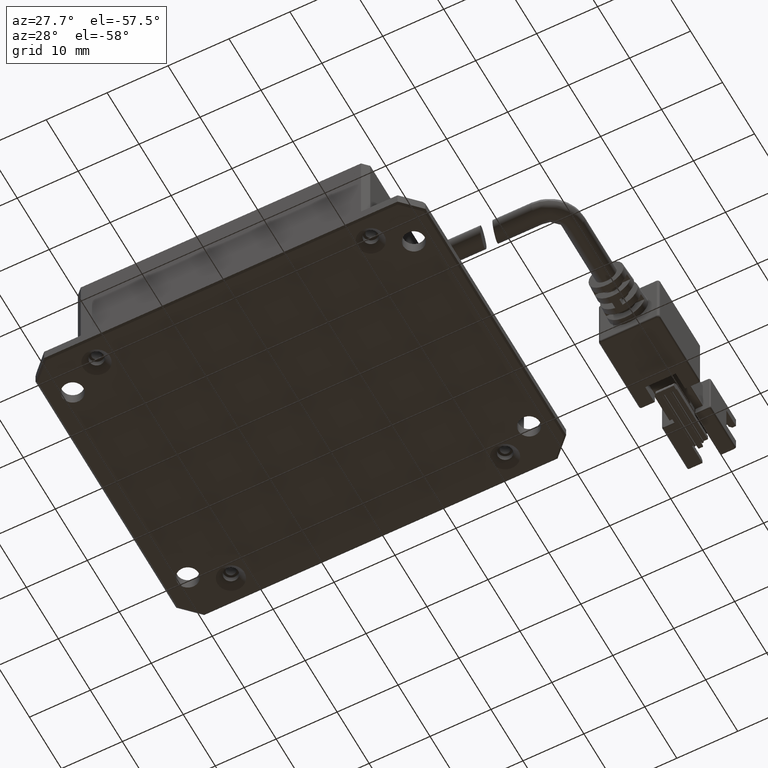
[diagram: clean part render]
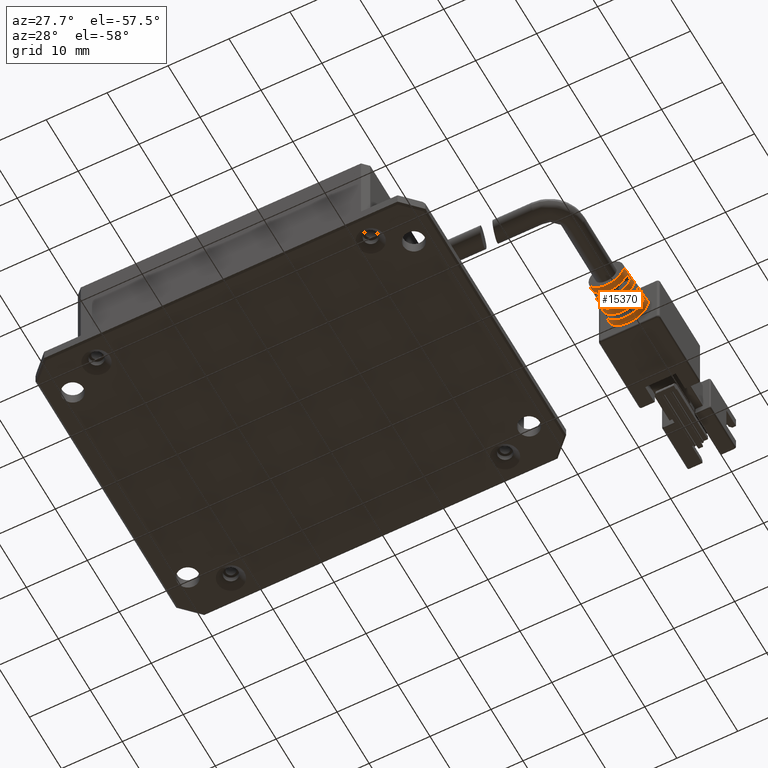
[diagram: same view with one face highlighted and labeled with its STEP entity id]
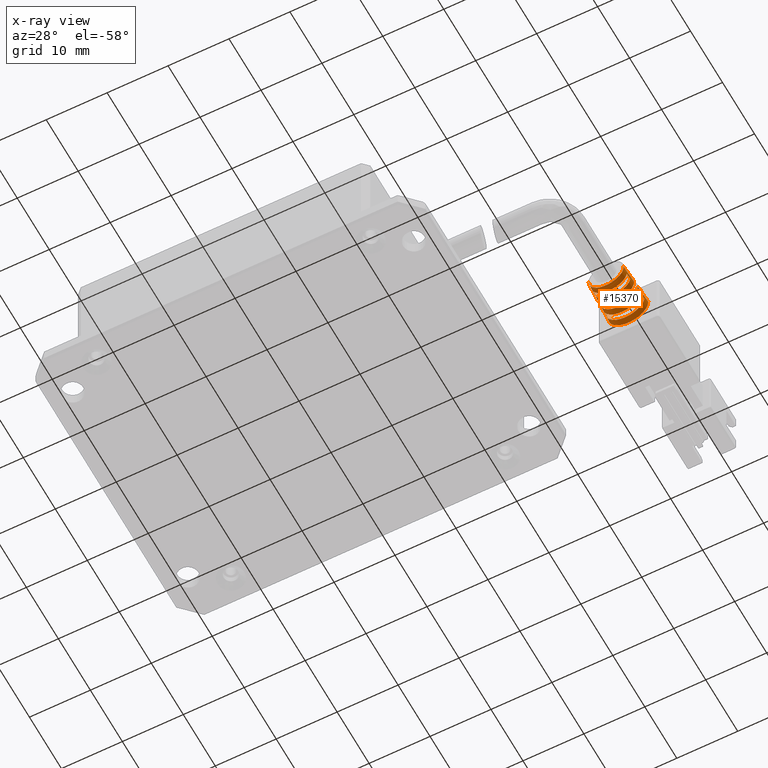
[diagram: x-ray of the same camera — body ghosted, the highlighted face saturated]
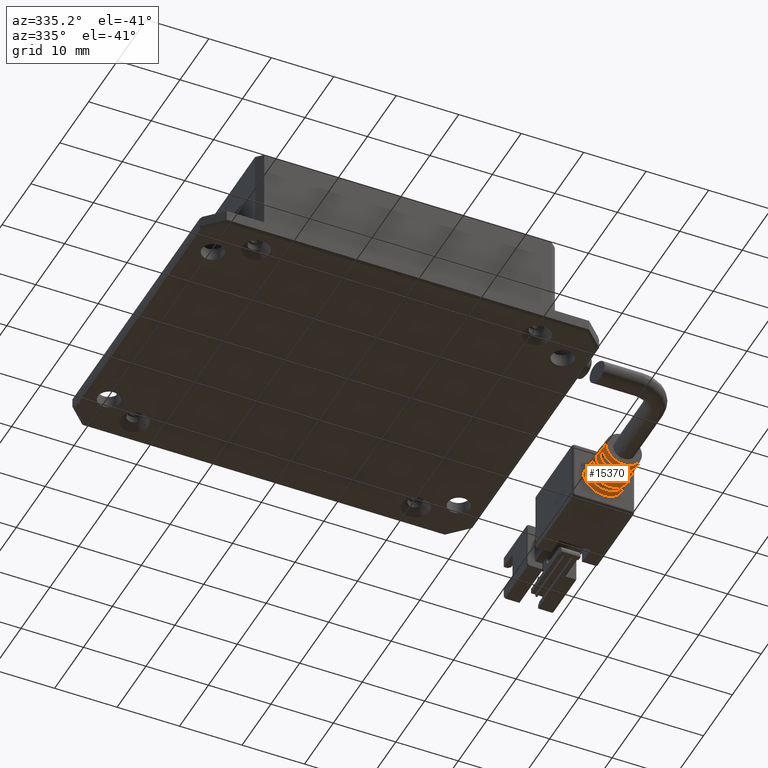
[diagram: same view with one face highlighted and labeled with its STEP entity id]
A machine part, auxiliary view. The second image highlights one B-rep face of the part: STEP entity #15370.
The next image is the same camera in x-ray: the body ghosted, the highlighted face saturated — about 0% of this face is hidden behind the body in this view.
A second angle (auxiliary view) of the same face is appended — the face is thin or edge-on in the first view.
In plain terms, the highlighted conical surface has half-angle 3 deg.
Its self-contained STEP definition (entity closure, byte-faithful):
#68 = CONICAL_SURFACE ( 'NONE', #8828, 3.249999999987096500, 0.05235987755968116900 ) ;
#180 = CARTESIAN_POINT ( 'NONE',  ( 50.02026484285691100, 8.290950744562678700, 4.399999999983693400 ) ) ;
#255 = CARTESIAN_POINT ( 'NONE',  ( 43.95236988803991100, 12.29095074457085700, 4.399999999983691600 ) ) ;
#305 = CARTESIAN_POINT ( 'NONE',  ( 43.84316533029164700, 13.29095074433166000, 4.999999999983691300 ) ) ;
#360 = EDGE_CURVE ( 'NONE', #18556, #13312, #6537, .T. ) ;
#402 = ORIENTED_EDGE ( 'NONE', *, *, #2659, .T. ) ;
#472 = AXIS2_PLACEMENT_3D ( 'NONE', #13995, #4528, #15612 ) ;
#491 = VERTEX_POINT ( 'NONE', #2001 ) ;
#545 = EDGE_CURVE ( 'NONE', #2575, #20525, #18189, .T. ) ;
#605 = VERTEX_POINT ( 'NONE', #10532 ) ;
#659 = DIRECTION ( 'NONE',  ( 0.05233595624279531500, 0.9986295347545816000, 4.539420596603585100E-018 ) ) ;
#795 = DIRECTION ( 'NONE',  ( 1.000000000000000000, 0.0000000000000000000, 0.0000000000000000000 ) ) ;
#809 = DIRECTION ( 'NONE',  ( 1.000000000000000000, 0.0000000000000000000, -8.273235679558057500E-016 ) ) ;
#1107 = ORIENTED_EDGE ( 'NONE', *, *, #15645, .T. ) ;
#1121 = CARTESIAN_POINT ( 'NONE',  ( 49.96674729706215600, 7.290950744573130700, 4.399999999983693400 ) ) ;
#1132 = VERTEX_POINT ( 'NONE', #3747 ) ;
#1275 = DIRECTION ( 'NONE',  ( -3.081487911019577400E-033, 1.000000000000000000, -2.672764710092188000E-049 ) ) ;
#1414 = CIRCLE ( 'NONE', #10149, 3.145184441432725900 ) ;
#1429 = DIRECTION ( 'NONE',  ( -0.05233595624279531500, 0.9986295347545816000, -1.094872672590910900E-017 ) ) ;
#1558 = CARTESIAN_POINT ( 'NONE',  ( 44.05279644741229800, 9.290950744539934200, 4.999999999983691300 ) ) ;
#1656 = CARTESIAN_POINT ( 'NONE',  ( 50.19838510704384000, 11.62428378490377600, 4.399999999983692500 ) ) ;
#1661 = EDGE_CURVE ( 'NONE', #19277, #3995, #9900, .T. ) ;
#1864 = CARTESIAN_POINT ( 'NONE',  ( 47.09316533027874400, 13.29095074455903400, 4.999999999983692200 ) ) ;
#2001 = CARTESIAN_POINT ( 'NONE',  ( 46.49316533027874200, 10.29095074457030800, 1.965981627932291500 ) ) ;
#2526 = EDGE_CURVE ( 'NONE', #1132, #2575, #3622, .T. ) ;
#2567 = CARTESIAN_POINT ( 'NONE',  ( 49.97631087529724400, 6.290950744554031400, 4.999999999983692200 ) ) ;
#2575 = VERTEX_POINT ( 'NONE', #1558 ) ;
#2641 = VERTEX_POINT ( 'NONE', #16023 ) ;
#2659 = EDGE_CURVE ( 'NONE', #2928, #8004, #4355, .T. ) ;
#2928 = VERTEX_POINT ( 'NONE', #15659 ) ;
#3144 = ORIENTED_EDGE ( 'NONE', *, *, #12848, .T. ) ;
#3180 = VERTEX_POINT ( 'NONE', #14728 ) ;
#3387 = CARTESIAN_POINT ( 'NONE',  ( 43.97015506965748000, 11.95761712331011500, 4.399999999983691600 ) ) ;
#3479 = DIRECTION ( 'NONE',  ( 1.000000000000000000, 0.0000000000000000000, 0.0000000000000000000 ) ) ;
#3482 = ORIENTED_EDGE ( 'NONE', *, *, #15974, .T. ) ;
#3485 = CARTESIAN_POINT ( 'NONE',  ( 47.09316533027874400, 9.290950744539934200, 4.999999999983692200 ) ) ;
#3622 = LINE ( 'NONE', #9346, #11544 ) ;
#3747 = CARTESIAN_POINT ( 'NONE',  ( 44.21001978526023600, 6.290950744554031400, 4.999999999983691300 ) ) ;
#3828 = DIRECTION ( 'NONE',  ( 1.000000000000000000, 0.0000000000000000000, -8.558452326718922600E-016 ) ) ;
#3906 = EDGE_LOOP ( 'NONE', ( #11569, #8999, #6940, #1107, #18300, #402, #9498, #14388, #8370, #18130, #6893, #4833 ) ) ;
#3938 = ORIENTED_EDGE ( 'NONE', *, *, #1661, .T. ) ;
#3943 = B_SPLINE_CURVE_WITH_KNOTS ( 'NONE', 3,
 ( #17634, #3387, #16045, #8150 ),
 .UNSPECIFIED., .F., .F.,
 ( 4, 4 ),
 ( 2.341740480690032800E-015, 0.001001423258043091700 ),
 .UNSPECIFIED. ) ;
#3995 = VERTEX_POINT ( 'NONE', #20466 ) ;
#4171 = CARTESIAN_POINT ( 'NONE',  ( 46.49316533027874200, 9.624283752028095100, 2.001602699982295800 ) ) ;
#4286 = CARTESIAN_POINT ( 'NONE',  ( 44.16606581770064800, 8.290950744561307300, 4.399999999983692500 ) ) ;
#4355 = LINE ( 'NONE', #305, #16981 ) ;
#4471 = CARTESIAN_POINT ( 'NONE',  ( 47.09316533027874400, 10.29095074457313100, 4.999999999983692200 ) ) ;
#4489 = EDGE_CURVE ( 'NONE', #18948, #9448, #1414, .T. ) ;
#4528 = DIRECTION ( 'NONE',  ( 3.081487911019577400E-033, -1.000000000000000000, 2.672764710092188000E-049 ) ) ;
#4560 = CIRCLE ( 'NONE', #472, 3.040368882866441200 ) ;
#4630 = CARTESIAN_POINT ( 'NONE',  ( 44.16606581770064800, 8.290950744561307300, 4.399999999983692500 ) ) ;
#4679 = EDGE_CURVE ( 'NONE', #491, #2928, #19714, .T. ) ;
#4716 = CARTESIAN_POINT ( 'NONE',  ( 50.34316533026584000, 13.29095074433166000, 4.999999999983692200 ) ) ;
#4813 = DIRECTION ( 'NONE',  ( 1.000000000000000000, 0.0000000000000000000, 0.0000000000000000000 ) ) ;
#4829 = CARTESIAN_POINT ( 'NONE',  ( 47.69316533027874500, 9.290950744543735600, 2.019422380812576200 ) ) ;
#4833 = ORIENTED_EDGE ( 'NONE', *, *, #18808, .F. ) ;
#4951 = CIRCLE ( 'NONE', #20131, 3.197592220717360200 ) ;
#5147 = AXIS2_PLACEMENT_3D ( 'NONE', #8220, #19286, #9832 ) ;
#5269 = CARTESIAN_POINT ( 'NONE',  ( 50.23396077251794600, 12.29095074457793800, 4.399999999983692500 ) ) ;
#5714 = CIRCLE ( 'NONE', #5147, 2.935553324303140400 ) ;
#5746 = CARTESIAN_POINT ( 'NONE',  ( 46.49316533027874200, 10.29095074457030800, 1.965981627932291500 ) ) ;
#5949 = EDGE_LOOP ( 'NONE', ( #15802, #6285, #3144, #17581 ) ) ;
#6056 = DIRECTION ( 'NONE',  ( 1.000000000000000000, 0.0000000000000000000, 0.0000000000000000000 ) ) ;
#6201 = CARTESIAN_POINT ( 'NONE',  ( 47.09316533027874400, 12.29095074458268000, 4.999999999983692200 ) ) ;
#6280 = FACE_BOUND ( 'NONE', #5949, .T. ) ;
#6285 = ORIENTED_EDGE ( 'NONE', *, *, #16849, .T. ) ;
#6333 = CARTESIAN_POINT ( 'NONE',  ( 47.09316533027874400, 13.29095074433166000, 4.999999999983692200 ) ) ;
#6410 = CARTESIAN_POINT ( 'NONE',  ( 50.00243233515712400, 7.957617054111669800, 4.399999999983693400 ) ) ;
#6537 = B_SPLINE_CURVE_WITH_KNOTS ( 'NONE', 3,
 ( #1121, #12752, #6410, #12183 ),
 .UNSPECIFIED., .F., .F.,
 ( 4, 4 ),
 ( 2.821323884305459600E-015, 0.001001431039903067500 ),
 .UNSPECIFIED. ) ;
#6657 = CARTESIAN_POINT ( 'NONE',  ( 43.84316533027973200, 13.29095074455903400, 4.999999999983691300 ) ) ;
#6864 = EDGE_CURVE ( 'NONE', #13312, #19277, #10127, .T. ) ;
#6893 = ORIENTED_EDGE ( 'NONE', *, *, #19758, .T. ) ;
#6913 = CIRCLE ( 'NONE', #19739, 3.249999999999010600 ) ;
#6940 = ORIENTED_EDGE ( 'NONE', *, *, #545, .T. ) ;
#7409 = DIRECTION ( 'NONE',  ( -3.081487911019577400E-033, 1.000000000000000000, -2.672764710092188000E-049 ) ) ;
#7788 = DIRECTION ( 'NONE',  ( 1.000000000000000000, 0.0000000000000000000, 0.0000000000000000000 ) ) ;
#7927 = DIRECTION ( 'NONE',  ( -3.081487911019577400E-033, 1.000000000000000000, -2.672764710092188000E-049 ) ) ;
#8004 = VERTEX_POINT ( 'NONE', #6657 ) ;
#8062 = VERTEX_POINT ( 'NONE', #5269 ) ;
#8093 = CARTESIAN_POINT ( 'NONE',  ( 50.21617559090000800, 11.95761712331011300, 4.399999999983692500 ) ) ;
#8150 = CARTESIAN_POINT ( 'NONE',  ( 44.00574161937815600, 11.29095074455140200, 4.399999999983692500 ) ) ;
#8220 = CARTESIAN_POINT ( 'NONE',  ( 47.09316533027874400, 7.290950744587227900, 4.999999999983692200 ) ) ;
#8370 = ORIENTED_EDGE ( 'NONE', *, *, #11932, .T. ) ;
#8486 = ORIENTED_EDGE ( 'NONE', *, *, #360, .T. ) ;
#8554 = EDGE_LOOP ( 'NONE', ( #8486, #9360, #3938, #3482 ) ) ;
#8660 = EDGE_CURVE ( 'NONE', #9659, #1132, #16750, .T. ) ;
#8828 = AXIS2_PLACEMENT_3D ( 'NONE', #6333, #7927, #4813 ) ;
#8999 = ORIENTED_EDGE ( 'NONE', *, *, #2526, .T. ) ;
#9065 = CARTESIAN_POINT ( 'NONE',  ( 44.20173738305315000, 7.624283713995428300, 4.399999999983693400 ) ) ;
#9346 = CARTESIAN_POINT ( 'NONE',  ( 43.84316533029164700, 13.29095074433166000, 4.999999999983691300 ) ) ;
#9360 = ORIENTED_EDGE ( 'NONE', *, *, #6864, .T. ) ;
#9443 = DIRECTION ( 'NONE',  ( 0.05233595624279531500, 0.9986295347545816000, 4.539420596603585100E-018 ) ) ;
#9448 = VERTEX_POINT ( 'NONE', #14678 ) ;
#9498 = ORIENTED_EDGE ( 'NONE', *, *, #16975, .T. ) ;
#9604 = AXIS2_PLACEMENT_3D ( 'NONE', #3485, #17741, #3828 ) ;
#9659 = VERTEX_POINT ( 'NONE', #2567 ) ;
#9832 = DIRECTION ( 'NONE',  ( 1.000000000000000000, 0.0000000000000000000, 0.0000000000000000000 ) ) ;
#9900 = B_SPLINE_CURVE_WITH_KNOTS ( 'NONE', 3,
 ( #4286, #18527, #9065, #20123 ),
 .UNSPECIFIED., .F., .F.,
 ( 4, 4 ),
 ( 4.691970052180783900E-016, 0.001001431039896517200 ),
 .UNSPECIFIED. ) ;
#9938 = AXIS2_PLACEMENT_3D ( 'NONE', #19750, #10266, #795 ) ;
#10127 = CIRCLE ( 'NONE', #9938, 2.987961103584790800 ) ;
#10149 = AXIS2_PLACEMENT_3D ( 'NONE', #19766, #10282, #809 ) ;
#10262 = VECTOR ( 'NONE', #659, 1000.000000000000200 ) ;
#10266 = DIRECTION ( 'NONE',  ( -3.081487911019577400E-033, 1.000000000000000000, -2.672764710092188000E-049 ) ) ;
#10282 = DIRECTION ( 'NONE',  ( 3.081487911019577400E-033, -1.000000000000000000, 2.672764710092188000E-049 ) ) ;
#10532 = CARTESIAN_POINT ( 'NONE',  ( 50.34316533027774900, 13.29095074455903400, 4.999999999983692200 ) ) ;
#10750 = CARTESIAN_POINT ( 'NONE',  ( 47.09316533027874400, 10.29095074457313100, 4.999999999983692200 ) ) ;
#10994 = FACE_BOUND ( 'NONE', #8554, .T. ) ;
#11065 = CARTESIAN_POINT ( 'NONE',  ( 47.69316533027874500, 9.957617091215672300, 1.983789223055079800 ) ) ;
#11448 = CARTESIAN_POINT ( 'NONE',  ( 47.69316533027874500, 10.29095074456608200, 1.965981627932517100 ) ) ;
#11544 = VECTOR ( 'NONE', #1429, 1000.000000000000200 ) ;
#11569 = ORIENTED_EDGE ( 'NONE', *, *, #8660, .T. ) ;
#11577 = CARTESIAN_POINT ( 'NONE',  ( 49.96674729706215600, 7.290950744573130700, 4.399999999983693400 ) ) ;
#11932 = EDGE_CURVE ( 'NONE', #2641, #13700, #14871, .T. ) ;
#12049 = VECTOR ( 'NONE', #9443, 1000.000000000000200 ) ;
#12053 = CARTESIAN_POINT ( 'NONE',  ( 46.49316533027874200, 9.290950744549483900, 2.019422380812268900 ) ) ;
#12183 = CARTESIAN_POINT ( 'NONE',  ( 50.02026484285691100, 8.290950744562678700, 4.399999999983693400 ) ) ;
#12338 = DIRECTION ( 'NONE',  ( 1.000000000000000000, 0.0000000000000000000, 0.0000000000000000000 ) ) ;
#12698 = CARTESIAN_POINT ( 'NONE',  ( 47.69316533027874500, 10.29095074456608200, 1.965981627932517100 ) ) ;
#12752 = CARTESIAN_POINT ( 'NONE',  ( 49.98459327750433100, 7.624283713995430900, 4.399999999983693400 ) ) ;
#12848 = EDGE_CURVE ( 'NONE', #19377, #18948, #3943, .T. ) ;
#12923 = AXIS2_PLACEMENT_3D ( 'NONE', #4471, #15551, #6056 ) ;
#12944 = DIRECTION ( 'NONE',  ( 3.081487911019577400E-033, -1.000000000000000000, 2.672764710092188000E-049 ) ) ;
#13312 = VERTEX_POINT ( 'NONE', #180 ) ;
#13700 = VERTEX_POINT ( 'NONE', #11448 ) ;
#13964 = CARTESIAN_POINT ( 'NONE',  ( 47.69316533027874500, 9.290950744543735600, 2.019422380812576200 ) ) ;
#13967 = AXIS2_PLACEMENT_3D ( 'NONE', #16869, #7409, #18445 ) ;
#13995 = CARTESIAN_POINT ( 'NONE',  ( 47.09316533027874400, 9.290950744539934200, 4.999999999983692200 ) ) ;
#14284 = CARTESIAN_POINT ( 'NONE',  ( 47.69316533027874500, 9.624283752028095100, 2.001602699982296200 ) ) ;
#14388 = ORIENTED_EDGE ( 'NONE', *, *, #14972, .F. ) ;
#14456 = CARTESIAN_POINT ( 'NONE',  ( 46.49316533027874200, 9.290950744549483900, 2.019422380812268900 ) ) ;
#14490 = DIRECTION ( 'NONE',  ( -0.05233595624279531500, 0.9986295347545816000, -1.094872672590910900E-017 ) ) ;
#14678 = CARTESIAN_POINT ( 'NONE',  ( 50.18058904117948100, 11.29095074455425900, 4.399999999983692500 ) ) ;
#14728 = CARTESIAN_POINT ( 'NONE',  ( 50.13353421314518200, 9.290950744539934200, 4.999999999983692200 ) ) ;
#14871 = CIRCLE ( 'NONE', #16827, 3.092776662151075500 ) ;
#14972 = EDGE_CURVE ( 'NONE', #2641, #605, #15478, .T. ) ;
#15231 = CARTESIAN_POINT ( 'NONE',  ( 46.49316533027874200, 9.957617091215672300, 1.983789223055079800 ) ) ;
#15370 = ADVANCED_FACE ( 'NONE', ( #6280, #10994, #19386 ), #68, .T. ) ;
#15478 = LINE ( 'NONE', #19611, #10262 ) ;
#15551 = DIRECTION ( 'NONE',  ( -3.081487911019577400E-033, 1.000000000000000000, -2.672764710092188000E-049 ) ) ;
#15612 = DIRECTION ( 'NONE',  ( 1.000000000000000000, 0.0000000000000000000, 8.558452326718922600E-016 ) ) ;
#15645 = EDGE_CURVE ( 'NONE', #20525, #491, #19956, .T. ) ;
#15659 = CARTESIAN_POINT ( 'NONE',  ( 44.00038866812766300, 10.29095074457313100, 4.999999999983691300 ) ) ;
#15796 = VERTEX_POINT ( 'NONE', #13964 ) ;
#15802 = ORIENTED_EDGE ( 'NONE', *, *, #15910, .T. ) ;
#15910 = EDGE_CURVE ( 'NONE', #9448, #8062, #20237, .T. ) ;
#15974 = EDGE_CURVE ( 'NONE', #3995, #18556, #5714, .T. ) ;
#15980 = CARTESIAN_POINT ( 'NONE',  ( 50.18058904117948100, 11.29095074455425900, 4.399999999983692500 ) ) ;
#16023 = CARTESIAN_POINT ( 'NONE',  ( 50.18594199242981800, 10.29095074457313100, 4.999999999983692200 ) ) ;
#16045 = CARTESIAN_POINT ( 'NONE',  ( 43.98794555351364700, 11.62428378490378100, 4.399999999983692500 ) ) ;
#16380 = CARTESIAN_POINT ( 'NONE',  ( 44.00574161937815600, 11.29095074455140200, 4.399999999983692500 ) ) ;
#16438 = EDGE_CURVE ( 'NONE', #13700, #15796, #16770, .T. ) ;
#16750 = CIRCLE ( 'NONE', #13967, 2.883145545018506200 ) ;
#16770 = B_SPLINE_CURVE_WITH_KNOTS ( 'NONE', 3,
 ( #12698, #11065, #14284, #4829 ),
 .UNSPECIFIED., .F., .F.,
 ( 4, 4 ),
 ( 1.405395367116548100E-015, 0.001001426938980521700 ),
 .UNSPECIFIED. ) ;
#16827 = AXIS2_PLACEMENT_3D ( 'NONE', #10750, #1275, #12338 ) ;
#16849 = EDGE_CURVE ( 'NONE', #8062, #19377, #4951, .T. ) ;
#16869 = CARTESIAN_POINT ( 'NONE',  ( 47.09316533027874400, 6.290950744554031400, 4.999999999983692200 ) ) ;
#16975 = EDGE_CURVE ( 'NONE', #8004, #605, #6913, .T. ) ;
#16981 = VECTOR ( 'NONE', #14490, 1000.000000000000200 ) ;
#17265 = DIRECTION ( 'NONE',  ( -3.081487911019577400E-033, 1.000000000000000000, -2.672764710092188000E-049 ) ) ;
#17581 = ORIENTED_EDGE ( 'NONE', *, *, #4489, .T. ) ;
#17634 = CARTESIAN_POINT ( 'NONE',  ( 43.95236988803991100, 12.29095074457085700, 4.399999999983691600 ) ) ;
#17741 = DIRECTION ( 'NONE',  ( 3.081487911019577400E-033, -1.000000000000000000, 2.672764710092188000E-049 ) ) ;
#18130 = ORIENTED_EDGE ( 'NONE', *, *, #16438, .T. ) ;
#18189 = CIRCLE ( 'NONE', #9604, 3.040368882866441200 ) ;
#18300 = ORIENTED_EDGE ( 'NONE', *, *, #4679, .T. ) ;
#18445 = DIRECTION ( 'NONE',  ( 1.000000000000000000, 0.0000000000000000000, 0.0000000000000000000 ) ) ;
#18527 = CARTESIAN_POINT ( 'NONE',  ( 44.18389832540035700, 7.957617054111668900, 4.399999999983692500 ) ) ;
#18556 = VERTEX_POINT ( 'NONE', #11577 ) ;
#18808 = EDGE_CURVE ( 'NONE', #9659, #3180, #20464, .T. ) ;
#18948 = VERTEX_POINT ( 'NONE', #16380 ) ;
#19152 = CARTESIAN_POINT ( 'NONE',  ( 50.23396077251794600, 12.29095074457793800, 4.399999999983692500 ) ) ;
#19277 = VERTEX_POINT ( 'NONE', #4630 ) ;
#19286 = DIRECTION ( 'NONE',  ( 3.081487911019577400E-033, -1.000000000000000000, 2.672764710092188000E-049 ) ) ;
#19377 = VERTEX_POINT ( 'NONE', #255 ) ;
#19386 = FACE_OUTER_BOUND ( 'NONE', #3906, .T. ) ;
#19611 = CARTESIAN_POINT ( 'NONE',  ( 50.34316533026584000, 13.29095074433166000, 4.999999999983692200 ) ) ;
#19714 = CIRCLE ( 'NONE', #12923, 3.092776662151075500 ) ;
#19739 = AXIS2_PLACEMENT_3D ( 'NONE', #1864, #12944, #3479 ) ;
#19750 = CARTESIAN_POINT ( 'NONE',  ( 47.09316533027874400, 8.290950744563581100, 4.999999999983692200 ) ) ;
#19758 = EDGE_CURVE ( 'NONE', #15796, #3180, #4560, .T. ) ;
#19766 = CARTESIAN_POINT ( 'NONE',  ( 47.09316533027874400, 11.29095074454948400, 4.999999999983692200 ) ) ;
#19956 = B_SPLINE_CURVE_WITH_KNOTS ( 'NONE', 3,
 ( #12053, #4171, #15231, #5746 ),
 .UNSPECIFIED., .F., .F.,
 ( 4, 4 ),
 ( 1.949140732119931800E-015, 0.001001426938979540300 ),
 .UNSPECIFIED. ) ;
#20123 = CARTESIAN_POINT ( 'NONE',  ( 44.21958336349486300, 7.290950744581584400, 4.399999999983693400 ) ) ;
#20131 = AXIS2_PLACEMENT_3D ( 'NONE', #6201, #17265, #7788 ) ;
#20237 = B_SPLINE_CURVE_WITH_KNOTS ( 'NONE', 3,
 ( #15980, #1656, #8093, #19152 ),
 .UNSPECIFIED., .F., .F.,
 ( 4, 4 ),
 ( 9.466711998563855400E-016, 0.001001423258045926400 ),
 .UNSPECIFIED. ) ;
#20464 = LINE ( 'NONE', #4716, #12049 ) ;
#20466 = CARTESIAN_POINT ( 'NONE',  ( 44.21958336349486300, 7.290950744581584400, 4.399999999983693400 ) ) ;
#20525 = VERTEX_POINT ( 'NONE', #14456 ) ;